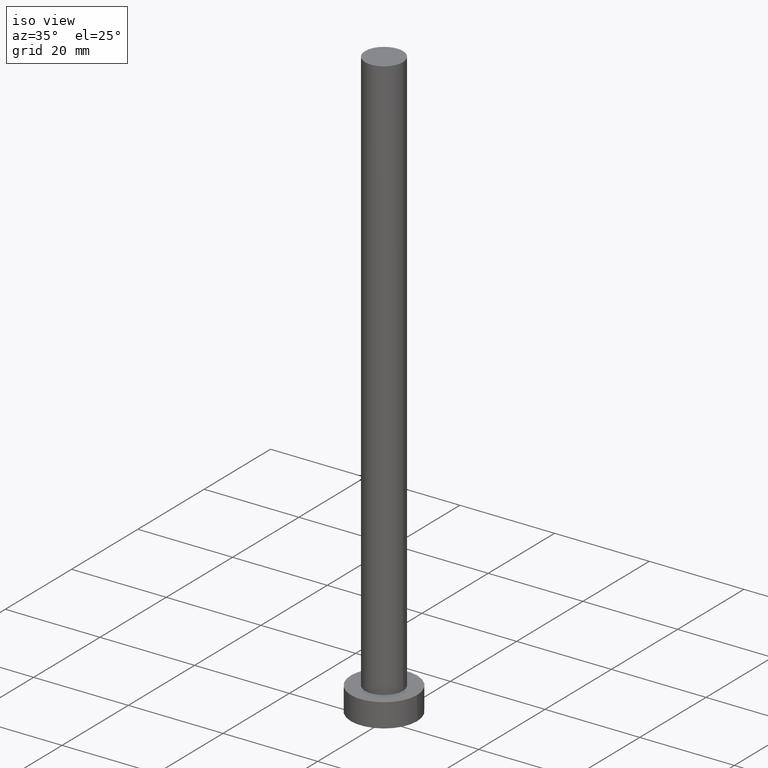
[diagram: clean part render]
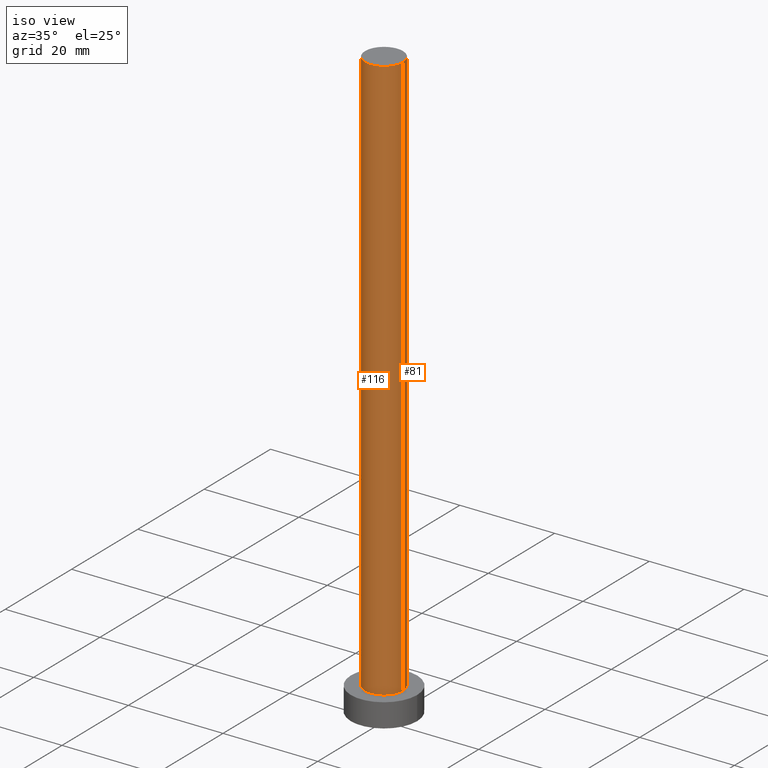
[diagram: same view with one multi-face feature highlighted, each face labeled with its STEP entity id]
A machine part, iso view. The highlighted faces form ONE feature: a constant-radius fillet chain: 2 tangent blend faces with common blend radius 4 mm. The faces share edges in the B-rep.
Their STEP definitions:
[1] entity #116 (Cylinder):
#3 = ORIENTED_EDGE ( 'NONE', *, *, #223, .T. ) ;
#26 = ORIENTED_EDGE ( 'NONE', *, *, #27, .F. ) ;
#27 = EDGE_CURVE ( 'NONE', #104, #255, #224, .T. ) ;
#35 = DIRECTION ( 'NONE',  ( 0.000000000000000000, 0.000000000000000000, 1.000000000000000000 ) ) ;
#42 = AXIS2_PLACEMENT_3D ( 'NONE', #215, #242, #108 ) ;
#43 = VERTEX_POINT ( 'NONE', #243 ) ;
#52 = DIRECTION ( 'NONE',  ( -0.000000000000000000, -0.000000000000000000, -1.000000000000000000 ) ) ;
#61 = ORIENTED_EDGE ( 'NONE', *, *, #175, .T. ) ;
#66 = ORIENTED_EDGE ( 'NONE', *, *, #148, .F. ) ;
#76 = AXIS2_PLACEMENT_3D ( 'NONE', #127, #35, #150 ) ;
#78 = AXIS2_PLACEMENT_3D ( 'NONE', #171, #168, #151 ) ;
#90 = CARTESIAN_POINT ( 'NONE',  ( 4.000000000000000000, 4.898587196589412829E-16, 125.0000000000000000 ) ) ;
#92 = EDGE_LOOP ( 'NONE', ( #26, #66, #3, #61 ) ) ;
#104 = VERTEX_POINT ( 'NONE', #90 ) ;
#107 = CIRCLE ( 'NONE', #78, 4.000000000000000000 ) ;
#108 = DIRECTION ( 'NONE',  ( -1.000000000000000000, 0.000000000000000000, 0.000000000000000000 ) ) ;
#113 = VECTOR ( 'NONE', #52, 1000.000000000000000 ) ;
#116 = ADVANCED_FACE ( 'NONE', ( #197 ), #166, .T. ) ;
#123 = DIRECTION ( 'NONE',  ( -0.000000000000000000, -0.000000000000000000, -1.000000000000000000 ) ) ;
#124 = VECTOR ( 'NONE', #123, 1000.000000000000000 ) ;
#127 = CARTESIAN_POINT ( 'NONE',  ( 0.000000000000000000, 0.000000000000000000, 125.0000000000000000 ) ) ;
#129 = LINE ( 'NONE', #230, #113 ) ;
#147 = CARTESIAN_POINT ( 'NONE',  ( 4.000000000000000000, 4.898587196589412829E-16, 5.000000000000000000 ) ) ;
#148 = EDGE_CURVE ( 'NONE', #217, #104, #185, .T. ) ;
#150 = DIRECTION ( 'NONE',  ( 1.000000000000000000, 0.000000000000000000, 0.000000000000000000 ) ) ;
#151 = DIRECTION ( 'NONE',  ( 1.000000000000000000, 0.000000000000000000, 0.000000000000000000 ) ) ;
#166 = CYLINDRICAL_SURFACE ( 'NONE', #42, 4.000000000000000000 ) ;
#168 = DIRECTION ( 'NONE',  ( 0.000000000000000000, 0.000000000000000000, 1.000000000000000000 ) ) ;
#171 = CARTESIAN_POINT ( 'NONE',  ( 0.000000000000000000, 0.000000000000000000, 5.000000000000000000 ) ) ;
#175 = EDGE_CURVE ( 'NONE', #43, #255, #107, .T. ) ;
#185 = CIRCLE ( 'NONE', #76, 4.000000000000000000 ) ;
#197 = FACE_OUTER_BOUND ( 'NONE', #92, .T. ) ;
#202 = CARTESIAN_POINT ( 'NONE',  ( 4.000000000000000000, 4.898587196589412829E-16, 125.0000000000000000 ) ) ;
#215 = CARTESIAN_POINT ( 'NONE',  ( 0.000000000000000000, 0.000000000000000000, 125.0000000000000000 ) ) ;
#217 = VERTEX_POINT ( 'NONE', #228 ) ;
#223 = EDGE_CURVE ( 'NONE', #217, #43, #129, .T. ) ;
#224 = LINE ( 'NONE', #202, #124 ) ;
#228 = CARTESIAN_POINT ( 'NONE',  ( -4.000000000000000000, 0.000000000000000000, 125.0000000000000000 ) ) ;
#230 = CARTESIAN_POINT ( 'NONE',  ( -4.000000000000000000, 0.000000000000000000, 125.0000000000000000 ) ) ;
#242 = DIRECTION ( 'NONE',  ( -0.000000000000000000, -0.000000000000000000, -1.000000000000000000 ) ) ;
#243 = CARTESIAN_POINT ( 'NONE',  ( -4.000000000000000000, 0.000000000000000000, 5.000000000000000000 ) ) ;
#255 = VERTEX_POINT ( 'NONE', #147 ) ;
[2] entity #81 (Cylinder):
#5 = ORIENTED_EDGE ( 'NONE', *, *, #223, .F. ) ;
#6 = CARTESIAN_POINT ( 'NONE',  ( 0.000000000000000000, 0.000000000000000000, 5.000000000000000000 ) ) ;
#9 = DIRECTION ( 'NONE',  ( 1.000000000000000000, 0.000000000000000000, 0.000000000000000000 ) ) ;
#22 = EDGE_CURVE ( 'NONE', #255, #43, #229, .T. ) ;
#27 = EDGE_CURVE ( 'NONE', #104, #255, #224, .T. ) ;
#38 = EDGE_CURVE ( 'NONE', #104, #217, #146, .T. ) ;
#43 = VERTEX_POINT ( 'NONE', #243 ) ;
#48 = CARTESIAN_POINT ( 'NONE',  ( 0.000000000000000000, 0.000000000000000000, 125.0000000000000000 ) ) ;
#52 = DIRECTION ( 'NONE',  ( -0.000000000000000000, -0.000000000000000000, -1.000000000000000000 ) ) ;
#57 = ORIENTED_EDGE ( 'NONE', *, *, #38, .F. ) ;
#63 = DIRECTION ( 'NONE',  ( -1.000000000000000000, 0.000000000000000000, 0.000000000000000000 ) ) ;
#81 = ADVANCED_FACE ( 'NONE', ( #141 ), #119, .T. ) ;
#88 = DIRECTION ( 'NONE',  ( 0.000000000000000000, 0.000000000000000000, 1.000000000000000000 ) ) ;
#89 = CARTESIAN_POINT ( 'NONE',  ( 0.000000000000000000, 0.000000000000000000, 125.0000000000000000 ) ) ;
#90 = CARTESIAN_POINT ( 'NONE',  ( 4.000000000000000000, 4.898587196589412829E-16, 125.0000000000000000 ) ) ;
#93 = AXIS2_PLACEMENT_3D ( 'NONE', #89, #105, #63 ) ;
#98 = AXIS2_PLACEMENT_3D ( 'NONE', #48, #88, #9 ) ;
#103 = DIRECTION ( 'NONE',  ( 1.000000000000000000, 0.000000000000000000, 0.000000000000000000 ) ) ;
#104 = VERTEX_POINT ( 'NONE', #90 ) ;
#105 = DIRECTION ( 'NONE',  ( -0.000000000000000000, -0.000000000000000000, -1.000000000000000000 ) ) ;
#113 = VECTOR ( 'NONE', #52, 1000.000000000000000 ) ;
#119 = CYLINDRICAL_SURFACE ( 'NONE', #93, 4.000000000000000000 ) ;
#122 = ORIENTED_EDGE ( 'NONE', *, *, #27, .T. ) ;
#123 = DIRECTION ( 'NONE',  ( -0.000000000000000000, -0.000000000000000000, -1.000000000000000000 ) ) ;
#124 = VECTOR ( 'NONE', #123, 1000.000000000000000 ) ;
#129 = LINE ( 'NONE', #230, #113 ) ;
#141 = FACE_OUTER_BOUND ( 'NONE', #221, .T. ) ;
#146 = CIRCLE ( 'NONE', #98, 4.000000000000000000 ) ;
#147 = CARTESIAN_POINT ( 'NONE',  ( 4.000000000000000000, 4.898587196589412829E-16, 5.000000000000000000 ) ) ;
#165 = DIRECTION ( 'NONE',  ( 0.000000000000000000, 0.000000000000000000, 1.000000000000000000 ) ) ;
#195 = ORIENTED_EDGE ( 'NONE', *, *, #22, .T. ) ;
#202 = CARTESIAN_POINT ( 'NONE',  ( 4.000000000000000000, 4.898587196589412829E-16, 125.0000000000000000 ) ) ;
#203 = AXIS2_PLACEMENT_3D ( 'NONE', #6, #165, #103 ) ;
#217 = VERTEX_POINT ( 'NONE', #228 ) ;
#221 = EDGE_LOOP ( 'NONE', ( #57, #122, #195, #5 ) ) ;
#223 = EDGE_CURVE ( 'NONE', #217, #43, #129, .T. ) ;
#224 = LINE ( 'NONE', #202, #124 ) ;
#228 = CARTESIAN_POINT ( 'NONE',  ( -4.000000000000000000, 0.000000000000000000, 125.0000000000000000 ) ) ;
#229 = CIRCLE ( 'NONE', #203, 4.000000000000000000 ) ;
#230 = CARTESIAN_POINT ( 'NONE',  ( -4.000000000000000000, 0.000000000000000000, 125.0000000000000000 ) ) ;
#243 = CARTESIAN_POINT ( 'NONE',  ( -4.000000000000000000, 0.000000000000000000, 5.000000000000000000 ) ) ;
#255 = VERTEX_POINT ( 'NONE', #147 ) ;